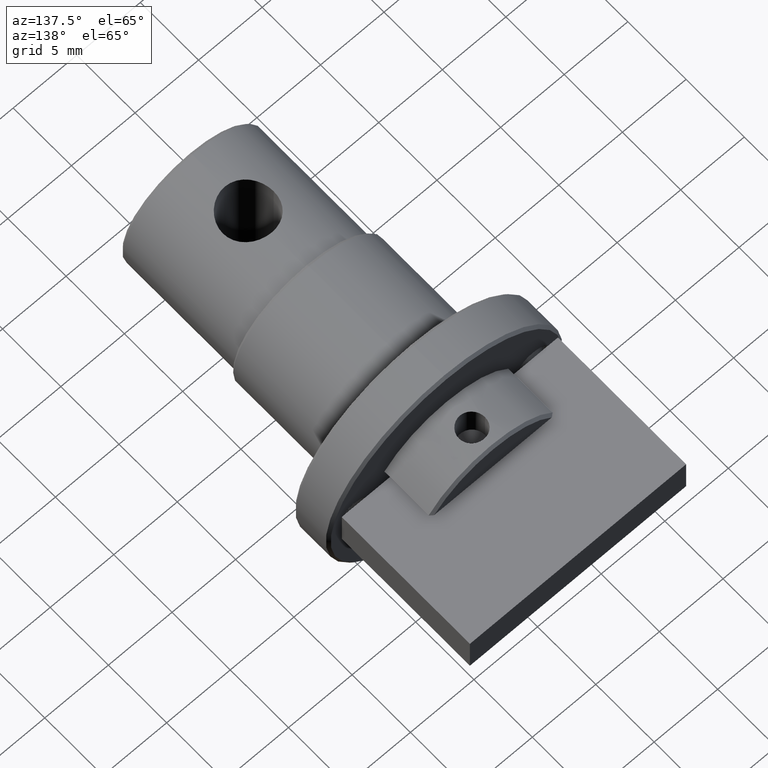
[diagram: clean part render]
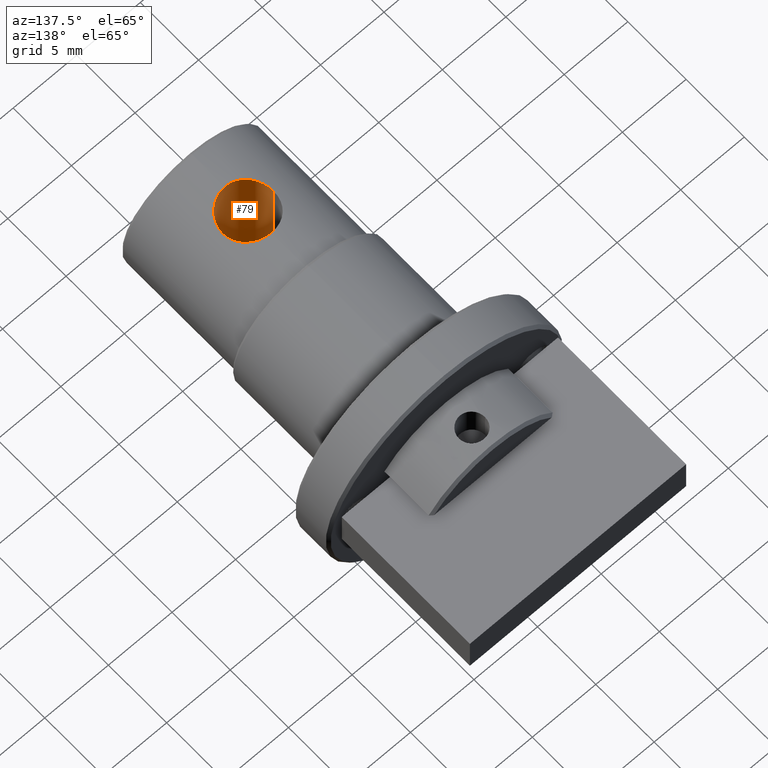
[diagram: same view with one face highlighted and labeled with its STEP entity id]
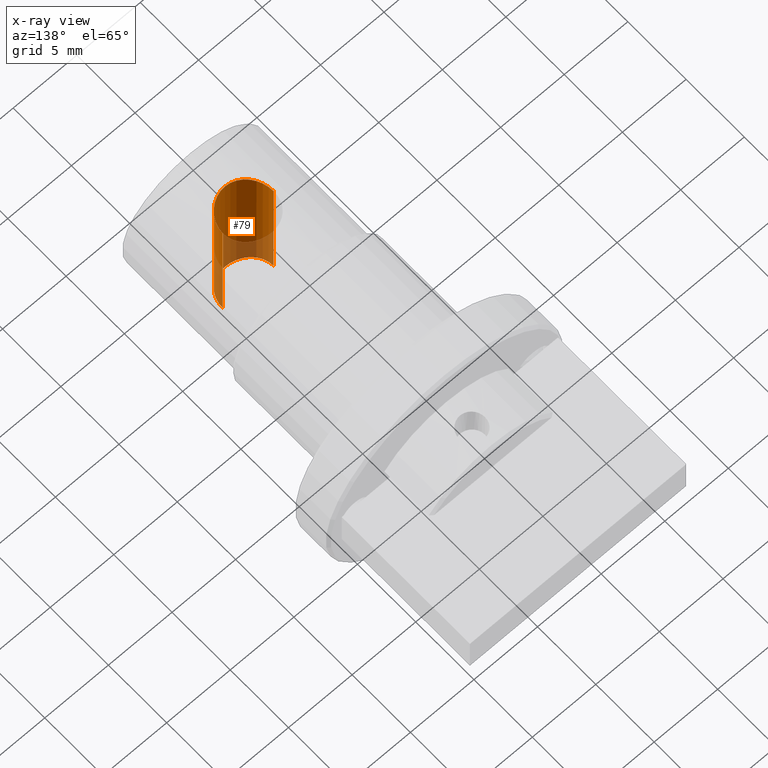
[diagram: x-ray of the same camera — body ghosted, the highlighted face saturated]
A machine part, auxiliary view. The second image highlights one B-rep face of the part: STEP entity #79.
The next image is the same camera in x-ray: the body ghosted, the highlighted face saturated — about 30% of this face is hidden behind the body in this view.
In plain terms, the highlighted cylindrical surface (edge-blend (fillet) strip) has radius 2 mm, axis along (-0, -0, 1).
Its self-contained STEP definition (entity closure, byte-faithful):
#52 = ORIENTED_EDGE ( 'NONE', *, *, #53, .F. ) ;
#53 = EDGE_CURVE ( 'NONE', #78, #54, #520, .T. ) ;
#54 = VERTEX_POINT ( 'NONE', #519 ) ;
#55 = ORIENTED_EDGE ( 'NONE', *, *, #56, .T. ) ;
#56 = EDGE_CURVE ( 'NONE', #78, #57, #521, .T. ) ;
#57 = VERTEX_POINT ( 'NONE', #514 ) ;
#58 = ORIENTED_EDGE ( 'NONE', *, *, #59, .F. ) ;
#59 = EDGE_CURVE ( 'NONE', #60, #57, #863, .T. ) ;
#60 = VERTEX_POINT ( 'NONE', #815 ) ;
#61 = ORIENTED_EDGE ( 'NONE', *, *, #81, .F. ) ;
#62 = VERTEX_POINT ( 'NONE', #750 ) ;
#63 = EDGE_CURVE ( 'NONE', #54, #84, #762, .T. ) ;
#78 = VERTEX_POINT ( 'NONE', #764 ) ;
#79 = ADVANCED_FACE ( 'NONE', ( #700 ), #730, .F. ) ;
#80 = EDGE_LOOP ( 'NONE', ( #52, #55, #58, #61, #82, #85 ) ) ;
#81 = EDGE_CURVE ( 'NONE', #62, #60, #725, .T. ) ;
#82 = ORIENTED_EDGE ( 'NONE', *, *, #83, .F. ) ;
#83 = EDGE_CURVE ( 'NONE', #84, #62, #724, .T. ) ;
#84 = VERTEX_POINT ( 'NONE', #722 ) ;
#85 = ORIENTED_EDGE ( 'NONE', *, *, #63, .F. ) ;
#503 = CARTESIAN_POINT ( 'NONE',  ( -6.802859447516007100, -12.42740384844470600, -4.595447774892035900 ) ) ;
#504 = CARTESIAN_POINT ( 'NONE',  ( -7.017920283642653500, -12.28321450167838200, -4.550976310118994000 ) ) ;
#505 = CARTESIAN_POINT ( 'NONE',  ( -7.118406630649355200, -12.20077465844802100, -4.526829971332596800 ) ) ;
#506 = CARTESIAN_POINT ( 'NONE',  ( -7.303287964123447800, -12.01589302125061000, -4.477637434597189900 ) ) ;
#507 = CARTESIAN_POINT ( 'NONE',  ( -7.385427926326322300, -11.91582052114451100, -4.453229003420042400 ) ) ;
#508 = CARTESIAN_POINT ( 'NONE',  ( -7.529900541593765900, -11.70040244904250800, -4.407460323877721500 ) ) ;
#509 = CARTESIAN_POINT ( 'NONE',  ( -7.592656141676759100, -11.58372568191571300, -4.385925105493653200 ) ) ;
#510 = CARTESIAN_POINT ( 'NONE',  ( -7.693192193150744100, -11.34231737812017100, -4.350097226947683600 ) ) ;
#511 = CARTESIAN_POINT ( 'NONE',  ( -7.731521316897869600, -11.21727262743221200, -4.335654175449994900 ) ) ;
#512 = CARTESIAN_POINT ( 'NONE',  ( -7.783551469155789900, -10.95800572671191000, -4.315799193990656600 ) ) ;
#513 = CARTESIAN_POINT ( 'NONE',  ( -7.796632573378700700, -10.82540444152774000, -4.310636488660642300 ) ) ;
#514 = CARTESIAN_POINT ( 'NONE',  ( -7.796632573378702500, -10.69412143911177200, 5.936314277298955700 ) ) ;
#515 = DIRECTION ( 'NONE',  ( -0.0000000000000000000, -0.0000000000000000000, 1.000000000000000000 ) ) ;
#516 = VECTOR ( 'NONE', #515, 1000.000000000000000 ) ;
#517 = CARTESIAN_POINT ( 'NONE',  ( -7.796632573378701600, -10.69412143911177200, -9.187161105680843300 ) ) ;
#518 = CARTESIAN_POINT ( 'NONE',  ( -7.796632573378702500, -10.69412143911177200, -4.310636488660642300 ) ) ;
#519 = CARTESIAN_POINT ( 'NONE',  ( -5.796632573379114600, -12.69412143911574700, -4.687161105682288400 ) ) ;
#520 = B_SPLINE_CURVE_WITH_KNOTS ( 'NONE', 3,
 ( #518, #513, #512, #511, #510, #509, #508, #507, #506, #505, #504, #503, #560, #559, #558, #557, #556, #555 ),
 .UNSPECIFIED., .F., .F.,
 ( 4, 2, 2, 2, 2, 2, 2, 2, 4 ),
 ( 0.006307240766315382200, 0.006701257490205354100, 0.007095274214095326000, 0.007489290937985297900, 0.007883307661875269000, 0.008277324385765241800, 0.008671341109655212800, 0.009065357833545183800, 0.009459374557435156600 ),
 .UNSPECIFIED. ) ;
#521 = LINE ( 'NONE', #517, #516 ) ;
#555 = CARTESIAN_POINT ( 'NONE',  ( -5.796632573379114600, -12.69412143911574700, -4.687161105682288400 ) ) ;
#556 = CARTESIAN_POINT ( 'NONE',  ( -5.928394440845556400, -12.69412143911172600, -4.687161105680825600 ) ) ;
#557 = CARTESIAN_POINT ( 'NONE',  ( -6.062188201872545300, -12.68074847928916100, -4.682259290618747900 ) ) ;
#558 = CARTESIAN_POINT ( 'NONE',  ( -6.319392213385491200, -12.62904498989322400, -4.663779242150884100 ) ) ;
#559 = CARTESIAN_POINT ( 'NONE',  ( -6.444291258376508400, -12.59090480385733300, -4.650267431465874100 ) ) ;
#560 = CARTESIAN_POINT ( 'NONE',  ( -6.686774123700886600, -12.48992124015269800, -4.616032122704133700 ) ) ;
#700 = FACE_OUTER_BOUND ( 'NONE', #80, .T. ) ;
#701 = CARTESIAN_POINT ( 'NONE',  ( -7.543019959872591300, -11.70301695082052600, 6.029294241379682600 ) ) ;
#702 = CARTESIAN_POINT ( 'NONE',  ( -7.394697355309565600, -11.92419488691162000, 6.078952285966191300 ) ) ;
#703 = CARTESIAN_POINT ( 'NONE',  ( -5.147625345599688100, -12.59038833385704900, -4.650090334295320800 ) ) ;
#704 = CARTESIAN_POINT ( 'NONE',  ( -5.274560145367604300, -12.62930740516476500, -4.663871541262743400 ) ) ;
#705 = CARTESIAN_POINT ( 'NONE',  ( -5.534026771268864700, -12.68121543185497300, -4.682427705946870400 ) ) ;
#706 = CARTESIAN_POINT ( 'NONE',  ( -5.664808245151011300, -12.69412143911182000, -4.687161105680862000 ) ) ;
#707 = CARTESIAN_POINT ( 'NONE',  ( -7.120590285017725800, -12.19873398437020900, 6.151947087924581200 ) ) ;
#708 = CARTESIAN_POINT ( 'NONE',  ( -7.019032458539455500, -12.28243762898099900, 6.176417194564021600 ) ) ;
#715 = CARTESIAN_POINT ( 'NONE',  ( -4.000647473433423900, -11.58375847821525000, 6.011615129372795100 ) ) ;
#716 = CARTESIAN_POINT ( 'NONE',  ( -3.900304179395548000, -11.34293201450610900, 5.975858886877506200 ) ) ;
#717 = CARTESIAN_POINT ( 'NONE',  ( -3.861410972731977000, -11.21604569917905700, 5.961206403292191400 ) ) ;
#718 = CARTESIAN_POINT ( 'NONE',  ( -3.809539339834588900, -10.95670106143546500, 5.941408980830805000 ) ) ;
#719 = CARTESIAN_POINT ( 'NONE',  ( -3.796632573378700700, -10.82595015203537700, 5.936314277298955700 ) ) ;
#722 = CARTESIAN_POINT ( 'NONE',  ( -3.796632573378701200, -10.69412143911177200, -4.310636488660642300 ) ) ;
#723 = CARTESIAN_POINT ( 'NONE',  ( -3.796632573378701200, -10.69412143911177200, 5.936314277298955700 ) ) ;
#724 = LINE ( 'NONE', #796, #795 ) ;
#725 = B_SPLINE_CURVE_WITH_KNOTS ( 'NONE', 3,
 ( #723, #719, #718, #717, #716, #715, #808, #807, #806, #805, #804, #803, #802, #801, #800, #799, #798, #797 ),
 .UNSPECIFIED., .F., .F.,
 ( 4, 2, 2, 2, 2, 2, 2, 2, 4 ),
 ( 0.009459827481575746800, 0.009854039845888958000, 0.01024825221020216900, 0.01064246457451538000, 0.01103667693882859300, 0.01143088930314180300, 0.01182510166745501600, 0.01221931403176822700, 0.01261352639608143800 ),
 .UNSPECIFIED. ) ;
#726 = DIRECTION ( 'NONE',  ( 1.000000000000000000, 0.0000000000000000000, 0.0000000000000000000 ) ) ;
#727 = DIRECTION ( 'NONE',  ( -0.0000000000000000000, -0.0000000000000000000, 1.000000000000000000 ) ) ;
#728 = CARTESIAN_POINT ( 'NONE',  ( -5.796632573378701600, -10.69412143911177200, -9.187161105680843300 ) ) ;
#729 = AXIS2_PLACEMENT_3D ( 'NONE', #728, #727, #726 ) ;
#730 = CYLINDRICAL_SURFACE ( 'NONE', #729, 2.000000000000000400 ) ;
#748 = CARTESIAN_POINT ( 'NONE',  ( -6.802406495653069200, -12.42773864470087200, 6.221226128917974700 ) ) ;
#749 = CARTESIAN_POINT ( 'NONE',  ( -6.687903025882013400, -12.48933885328915300, 6.241517463749292300 ) ) ;
#750 = CARTESIAN_POINT ( 'NONE',  ( -3.796632573378701200, -10.69412143911177200, 5.936314277298955700 ) ) ;
#756 = CARTESIAN_POINT ( 'NONE',  ( -3.899873576284074600, -11.34184288815533400, -4.350026280403141300 ) ) ;
#757 = CARTESIAN_POINT ( 'NONE',  ( -4.000827554191563000, -11.58424620658697700, -4.386002884239025500 ) ) ;
#758 = CARTESIAN_POINT ( 'NONE',  ( -4.062273699851202100, -11.69851874935681800, -4.407096123471267100 ) ) ;
#759 = CARTESIAN_POINT ( 'NONE',  ( -4.206490343118499500, -11.91406502246068100, -4.452820606605814500 ) ) ;
#760 = CARTESIAN_POINT ( 'NONE',  ( -4.290249481484141600, -12.01609992981475000, -4.477700576151010900 ) ) ;
#762 = B_SPLINE_CURVE_WITH_KNOTS ( 'NONE', 3,
 ( #860, #706, #705, #704, #703, #879, #878, #877, #876, #760, #759, #758, #757, #756, #856, #855, #854, #853 ),
 .UNSPECIFIED., .F., .F.,
 ( 4, 2, 2, 2, 2, 2, 2, 2, 4 ),
 ( 0.009459374557435156600, 0.009853578062109342000, 0.01024778156678352700, 0.01064198507145771300, 0.01103618857613189800, 0.01143039208080608300, 0.01182459558548026900, 0.01221879909015445400, 0.01261300259482863900 ),
 .UNSPECIFIED. ) ;
#764 = CARTESIAN_POINT ( 'NONE',  ( -7.796632573378702500, -10.69412143911177200, -4.310636488660642300 ) ) ;
#784 = CARTESIAN_POINT ( 'NONE',  ( -7.796632573378702500, -10.69412143911177200, 5.936314277298955700 ) ) ;
#785 = CARTESIAN_POINT ( 'NONE',  ( -7.796632573378699900, -10.82591995067429600, 5.936314277298953900 ) ) ;
#794 = DIRECTION ( 'NONE',  ( -0.0000000000000000000, -0.0000000000000000000, 1.000000000000000000 ) ) ;
#795 = VECTOR ( 'NONE', #794, 1000.000000000000000 ) ;
#796 = CARTESIAN_POINT ( 'NONE',  ( -3.796632573378701200, -10.69412143911177200, -9.187161105680843300 ) ) ;
#797 = CARTESIAN_POINT ( 'NONE',  ( -5.796632573378703400, -12.69412143911177400, 6.312838894319156700 ) ) ;
#798 = CARTESIAN_POINT ( 'NONE',  ( -5.663255829621405700, -12.69412143911177500, 6.312838894319157600 ) ) ;
#799 = CARTESIAN_POINT ( 'NONE',  ( -5.532386228391893600, -12.68090061015841900, 6.307992790956968000 ) ) ;
#800 = CARTESIAN_POINT ( 'NONE',  ( -5.275807069964426600, -12.62954346036113200, 6.289633876200974200 ) ) ;
#801 = CARTESIAN_POINT ( 'NONE',  ( -5.148733521423108300, -12.59082812523711500, 6.275918185185428700 ) ) ;
#802 = CARTESIAN_POINT ( 'NONE',  ( -4.906123047674015900, -12.48974451184913200, 6.241651039203720300 ) ) ;
#803 = CARTESIAN_POINT ( 'NONE',  ( -4.791763901125906800, -12.42821301248487000, 6.221383896623574800 ) ) ;
#804 = CARTESIAN_POINT ( 'NONE',  ( -4.576134197040436100, -12.28384416546198000, 6.176839621741073000 ) ) ;
#805 = CARTESIAN_POINT ( 'NONE',  ( -4.474082886113517800, -12.20000415463267600, 6.152302113639967400 ) ) ;
#806 = CARTESIAN_POINT ( 'NONE',  ( -4.290673726548191300, -12.01658443664431900, 6.103499826321689500 ) ) ;
#807 = CARTESIAN_POINT ( 'NONE',  ( -4.208457039808195100, -11.91671358681810800, 6.079100891590705700 ) ) ;
#808 = CARTESIAN_POINT ( 'NONE',  ( -4.063040472570534700, -11.69995020837653900, 6.033037681468360200 ) ) ;
#815 = CARTESIAN_POINT ( 'NONE',  ( -5.796632573378703400, -12.69412143911177400, 6.312838894319156700 ) ) ;
#816 = CARTESIAN_POINT ( 'NONE',  ( -6.061032191892677700, -12.68090563859490900, 6.307994158759995300 ) ) ;
#817 = CARTESIAN_POINT ( 'NONE',  ( -5.930056374665262800, -12.69412143911177000, 6.312838894319157600 ) ) ;
#853 = CARTESIAN_POINT ( 'NONE',  ( -3.796632573378701200, -10.69412143911177200, -4.310636488660642300 ) ) ;
#854 = CARTESIAN_POINT ( 'NONE',  ( -3.796632573378701600, -10.82751415453294200, -4.310636488660642300 ) ) ;
#855 = CARTESIAN_POINT ( 'NONE',  ( -3.809855658329309100, -10.95835930801986000, -4.315852177254613200 ) ) ;
#856 = CARTESIAN_POINT ( 'NONE',  ( -3.861185037813843000, -11.21483921162792900, -4.335442125097868500 ) ) ;
#857 = CARTESIAN_POINT ( 'NONE',  ( -7.783731357814781800, -10.95651795569856400, 5.941406340553659700 ) ) ;
#858 = CARTESIAN_POINT ( 'NONE',  ( -7.732029339584190800, -11.21532472803612800, 5.961140069177223400 ) ) ;
#859 = CARTESIAN_POINT ( 'NONE',  ( -7.693054048053079800, -11.34259684705459700, 5.975822955236757200 ) ) ;
#860 = CARTESIAN_POINT ( 'NONE',  ( -5.796632573379114600, -12.69412143911574700, -4.687161105682288400 ) ) ;
#863 = B_SPLINE_CURVE_WITH_KNOTS ( 'NONE', 3,
 ( #866, #817, #816, #865, #864, #749, #748, #708, #707, #702, #701, #859, #858, #857, #785, #784 ),
 .UNSPECIFIED., .F., .F.,
 ( 4, 2, 2, 2, 2, 2, 2, 4 ),
 ( 1.734723475976807100E-018, 0.0003943514489793074300, 0.0007887028979586131300, 0.001183054346937918900, 0.001577405795917224500, 0.002366108693875831800, 0.002760460142855132800, 0.003154811591834433400 ),
 .UNSPECIFIED. ) ;
#864 = CARTESIAN_POINT ( 'NONE',  ( -6.446064667095782000, -12.59027716565994700, 6.275727506156828300 ) ) ;
#865 = CARTESIAN_POINT ( 'NONE',  ( -6.318353471821937200, -12.62932838352722000, 6.289557423028640800 ) ) ;
#866 = CARTESIAN_POINT ( 'NONE',  ( -5.796632573378703400, -12.69412143911177400, 6.312838894319156700 ) ) ;
#876 = CARTESIAN_POINT ( 'NONE',  ( -4.473580669052262600, -12.19956184241086200, -4.526499226329016200 ) ) ;
#877 = CARTESIAN_POINT ( 'NONE',  ( -4.573465185638808900, -12.28186466501923300, -4.550567752195723500 ) ) ;
#878 = CARTESIAN_POINT ( 'NONE',  ( -4.790401469020570100, -12.42748982882807400, -4.595466596214142100 ) ) ;
#879 = CARTESIAN_POINT ( 'NONE',  ( -4.906657946647866800, -12.48994539529222300, -4.616042325815896200 ) ) ;